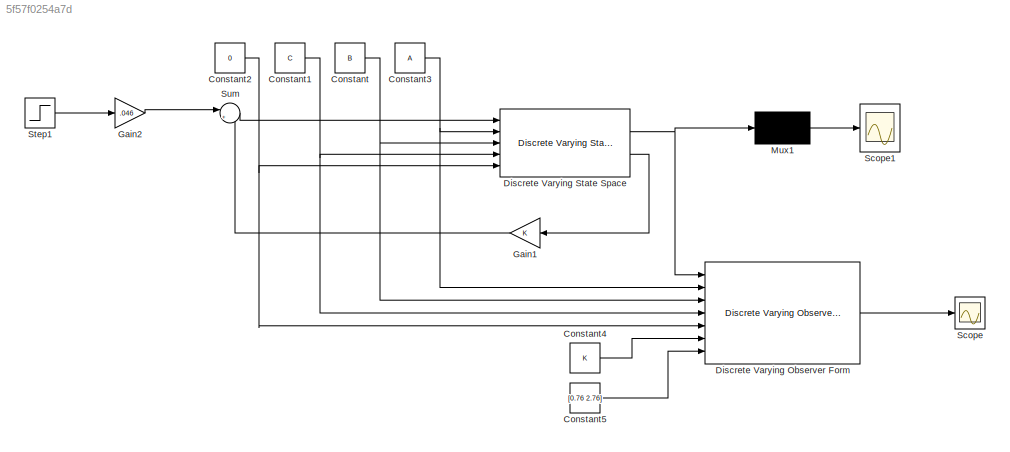
MODEL slx_5f57f0254a7d
KIND model
CONFIG AbsTol = auto
CONFIG EnableMultiTasking = off
CONFIG FixedStep = auto
CONFIG MaxStep = auto
CONFIG MinStep = auto
CONFIG RelTol = 1e-3
CONFIG SampleTimeConstraint = Unconstrained
CONFIG Solver = VariableStepAuto
CONFIG SolverName = VariableStepAuto
CONFIG StartTime = 0.0
CONFIG StopTime = 10.0
BLOCK [Constant] Constant
  SampleTime = -1
  Value = B
  VectorParams1D = off
BLOCK [Constant] Constant1
  SampleTime = -1
  Value = C
  VectorParams1D = off
BLOCK [Constant] Constant2
  SampleTime = -1
  Value = 0
  VectorParams1D = off
BLOCK [Constant] Constant3
  SampleTime = -1
  Value = A
  VectorParams1D = off
BLOCK [Constant] Constant4
  SampleTime = -1
  Value = K
  VectorParams1D = off
BLOCK [Constant] Constant5
  SampleTime = -1
  Value = [0.76 2.76]
BLOCK [Reference] Discrete Varying Observer Form  REF=cstblocks/Linear Parameter Varying/Discrete Varying Observer Form
  Ports = [7, 1]
  SourceBlock = cstblocks/Linear Parameter Varying/Discrete Varying Observer Form
  SourceProductBaseCode = CT
  SourceType = Discrete Varying Observer Form
BLOCK [Reference] Discrete Varying State Space  REF=cstblocks/Linear Parameter Varying/Discrete Varying State Space
  Ports = [5, 2]
  SourceBlock = cstblocks/Linear Parameter Varying/Discrete Varying State Space
  SourceProductBaseCode = CT
  SourceType = Discrete Varying State Space
BLOCK [Gain] Gain1
  Gain = K
  Multiplication = Matrix(K*u)
  NameLocation = top
BLOCK [Gain] Gain2
  Gain = .046
  Multiplication = Matrix(K*u)
  NameLocation = top
BLOCK [Mux] Mux1
  DisplayOption = signals
  Inputs = 1
  Ports = [1, 1]
BLOCK [Scope] Scope
  Floating = off
  NumInputPorts = 1
  Ports = [1]
  ScopeSpecificationString = Simulink.scopes.TimeScopeBlockCfg('CurrentConfiguration', extmgr.ConfigurationSet(extmgr.Configuration('Core','General UI',true),extmgr.Configuration('Core','Source UI',true),extmgr.Configuration('Sources','WiredSimulink',true),extmgr.Configuration('Visuals','Time Domain',true,'SerializedDisplays',{struct('MinYLimReal','-12596486801852582821927986801530474856448.00000','MaxYLimReal','5731500368507...<+1810ch>
BLOCK [Scope] Scope1
  Floating = off
  NumInputPorts = 1
  Ports = [1]
  ScopeSpecificationString = Simulink.scopes.TimeScopeBlockCfg('CurrentConfiguration', extmgr.ConfigurationSet(extmgr.Configuration('Core','General UI',true),extmgr.Configuration('Core','Source UI',true),extmgr.Configuration('Sources','WiredSimulink',true,'DataLoggingVariableName','ScopeData1'),extmgr.Configuration('Visuals','Time Domain',true,'SerializedDisplays',{struct('MinYLimReal','-1.26583','MaxYLimReal','11.39246','YLa...<+1466ch>
BLOCK [Step] Step1
  After = 10
BLOCK [Sum] Sum
  Inputs = |+-
  Ports = [2, 1]
NET Constant1:1 -> Discrete Varying Observer Form:4, Discrete Varying State Space:4
NET Constant2:1 -> Discrete Varying Observer Form:5, Discrete Varying State Space:5
NET Constant3:1 -> Discrete Varying Observer Form:2, Discrete Varying State Space:2
LINE Constant4:1 -> Discrete Varying Observer Form:6
LINE Constant5:1 -> Discrete Varying Observer Form:7
NET Constant:1 -> Discrete Varying Observer Form:3, Discrete Varying State Space:3
LINE Discrete Varying Observer Form:1 -> Scope:1
NET Discrete Varying State Space:1 -> Discrete Varying Observer Form:1, Mux1:1
LINE Discrete Varying State Space:2 -> Gain1:1
LINE Gain1:1 -> Sum:2
LINE Gain2:1 -> Sum:1
LINE Mux1:1 -> Scope1:1
LINE Step1:1 -> Gain2:1
LINE Sum:1 -> Discrete Varying State Space:1
note: NET lines group one-source signal fan-out (src -> all destinations, sorted); 1:1 wires keep LINE
